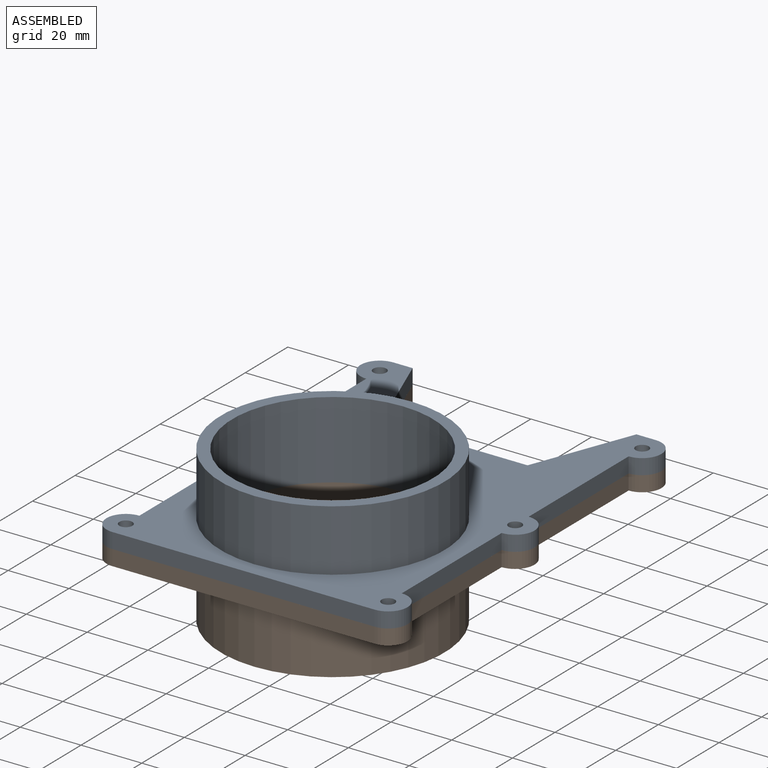
[diagram: assembled view]
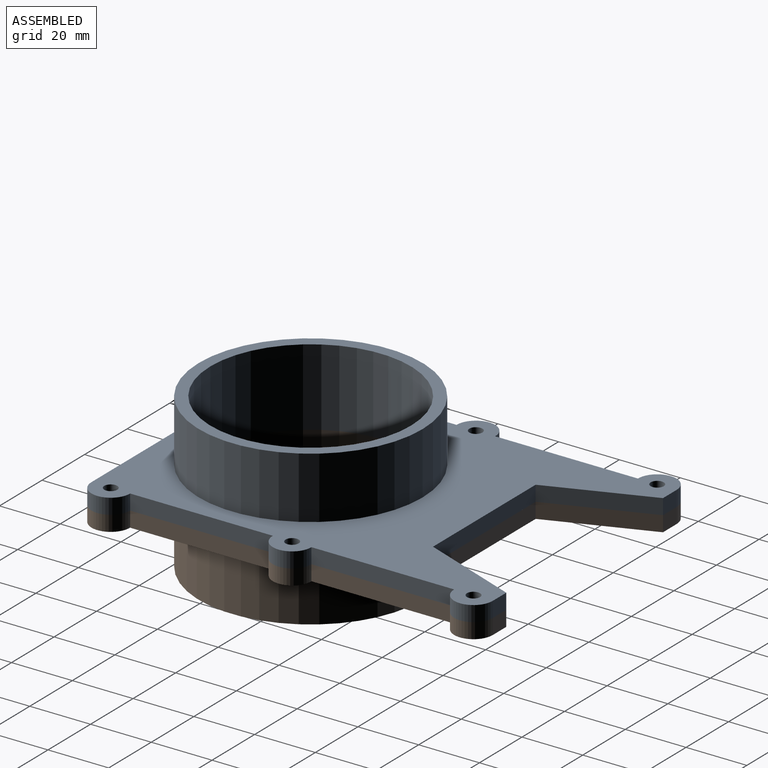
[diagram: assembled view, second angle]
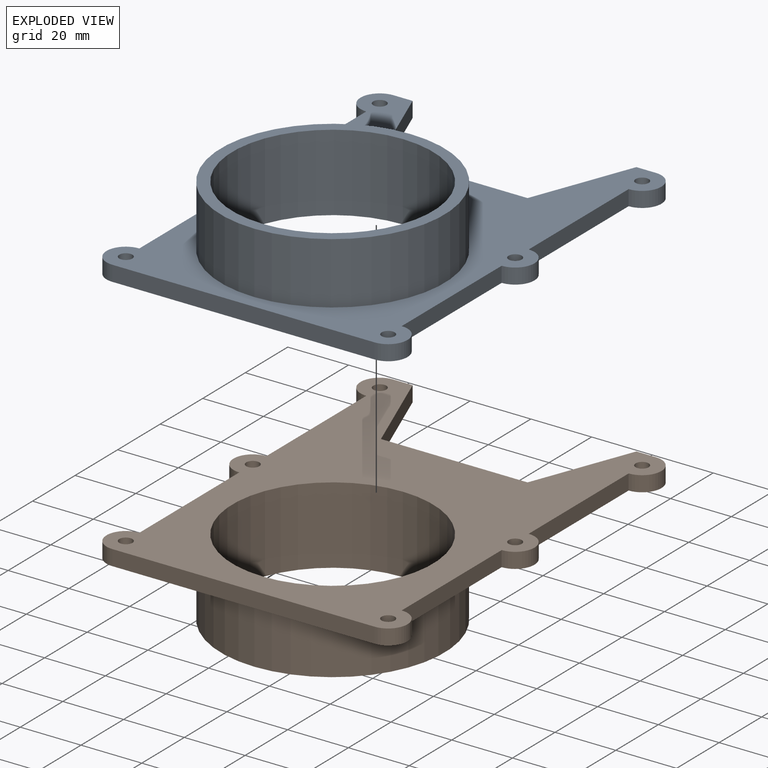
[diagram: exploded view]
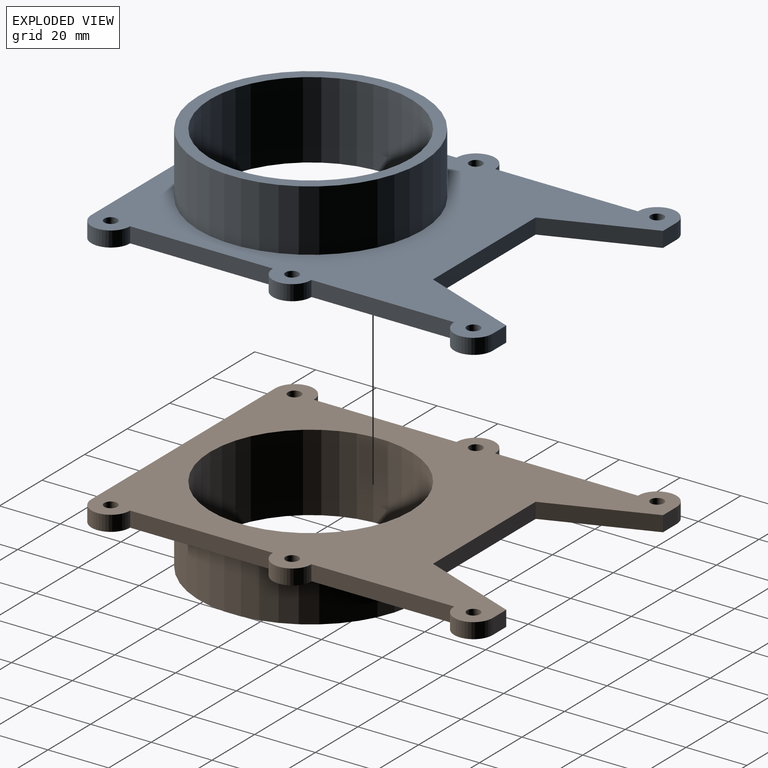
[diagram: exploded view, second angle]
ASSEMBLY  parts=2 mates=2
PART A: 27 faces, bbox 99.1x132.1x25.4 mm
  f0: plane 73.66x73.66mm, normal (0,0,1), area 836.1mm2, adj f1,f2
  f1: cylinder r=36.83mm len=73.66mm, axis (0,0,-1), area 4702.2mm2, adj f0,f4
  f2: cylinder r=33.02mm len=66.04mm, axis (0,0,-1), area 5269.8mm2, adj f0,f3
  f3: plane 132.08x99.06mm, normal (0,0,-1), area 6260.4mm2, adj f2,f5,f6,f7,f8,f9,f10,f11
  f4: plane 132.08x99.06mm, normal (0,0,1), area 5424.3mm2, adj f1,f5,f6,f7,f8,f9,f10,f11
  f5: cylinder r=6.35mm len=12.7mm, axis (0,0,1), area 101.3mm2, adj f3,f4,f6,f13
  f6: plane 86.36x5.08mm, normal (0,-1,0), area 438.7mm2, adj f3,f4,f5,f17
  f7: plane 48.26x5.08mm, normal (0,1,0), area 245.2mm2, adj f3,f4,f8,f23
  f8: plane 33.02x12.7mm, normal (-0.93,0.36,0), area 179.7mm2, adj f3,f4,f7,f9
  f9: plane 6.35x5.08mm, normal (0,1,0), area 32.3mm2, adj f3,f4,f8,f10
  f10: cylinder r=6.35mm len=12.7mm, axis (0,0,1), area 101.3mm2, adj f3,f4,f9,f11
  f11: plane 46.99x5.08mm, normal (1,0,0), area 238.7mm2, adj f3,f4,f10,f12
  f12: cylinder r=6.35mm len=12.7mm, axis (0,0,1), area 101.3mm2, adj f3,f4,f11,f13
  f13: plane 46.99x5.08mm, normal (1,0,0), area 238.7mm2, adj f3,f4,f5,f12
  f14: cylinder r=2.16mm len=5.08mm, axis (0,0,1), area 68.9mm2, adj f3,f4
  f15: cylinder r=2.16mm len=5.08mm, axis (0,0,1), area 68.9mm2, adj f3,f4
  f16: cylinder r=2.16mm len=5.08mm, axis (0,0,1), area 68.9mm2, adj f3,f4
  f17: cylinder r=6.35mm len=12.7mm, axis (0,0,1), area 101.3mm2, adj f3,f4,f6,f18
  f18: plane 46.99x5.08mm, normal (-1,0,0), area 238.7mm2, adj f3,f4,f17,f19
  f19: cylinder r=6.35mm len=12.7mm, axis (0,0,1), area 101.3mm2, adj f3,f4,f18,f20
  f20: plane 46.99x5.08mm, normal (-1,0,0), area 238.7mm2, adj f3,f4,f19,f21
  f21: cylinder r=6.35mm len=12.7mm, axis (0,0,1), area 101.3mm2, adj f3,f4,f20,f22
  f22: plane 6.35x5.08mm, normal (0,1,0), area 32.3mm2, adj f3,f4,f21,f23
  f23: plane 33.02x12.7mm, normal (0.93,0.36,0), area 179.7mm2, adj f3,f4,f7,f22
  f24: cylinder r=2.16mm len=5.08mm, axis (0,0,1), area 68.9mm2, adj f3,f4
  f25: cylinder r=2.16mm len=5.08mm, axis (0,0,1), area 68.9mm2, adj f3,f4
  f26: cylinder r=2.16mm len=5.08mm, axis (0,0,1), area 68.9mm2, adj f3,f4
PART B: 27 faces, bbox 99.1x132.1x25.4 mm
  f0: plane 73.66x73.66mm, normal (0,0,-1), area 836.1mm2, adj f1,f2
  f1: cylinder r=36.83mm len=73.66mm, axis (0,0,1), area 4702.2mm2, adj f0,f4
  f2: cylinder r=33.02mm len=66.04mm, axis (0,0,1), area 5269.8mm2, adj f0,f3
  f3: plane 132.08x99.06mm, normal (0,0,1), area 6260.4mm2, adj f2,f5,f6,f7,f8,f9,f10,f11
  f4: plane 132.08x99.06mm, normal (0,0,-1), area 5424.3mm2, adj f1,f5,f6,f7,f8,f9,f10,f11
  f5: cylinder r=6.35mm len=12.7mm, axis (0,0,-1), area 101.3mm2, adj f3,f4,f6,f13
  f6: plane 86.36x5.08mm, normal (0,-1,0), area 438.7mm2, adj f3,f4,f5,f17
  f7: plane 48.26x5.08mm, normal (0,1,0), area 245.2mm2, adj f3,f4,f8,f23
  f8: plane 33.02x12.7mm, normal (-0.93,0.36,0), area 179.7mm2, adj f3,f4,f7,f9
  f9: plane 6.35x5.08mm, normal (0,1,0), area 32.3mm2, adj f3,f4,f8,f10
  f10: cylinder r=6.35mm len=12.7mm, axis (0,0,-1), area 101.3mm2, adj f3,f4,f9,f11
  f11: plane 46.99x5.08mm, normal (1,0,0), area 238.7mm2, adj f3,f4,f10,f12
  f12: cylinder r=6.35mm len=12.7mm, axis (0,0,-1), area 101.3mm2, adj f3,f4,f11,f13
  f13: plane 46.99x5.08mm, normal (1,0,0), area 238.7mm2, adj f3,f4,f5,f12
  f14: cylinder r=2.16mm len=5.08mm, axis (0,0,-1), area 68.9mm2, adj f3,f4
  f15: cylinder r=2.16mm len=5.08mm, axis (0,0,-1), area 68.9mm2, adj f3,f4
  f16: cylinder r=2.16mm len=5.08mm, axis (0,0,-1), area 68.9mm2, adj f3,f4
  f17: cylinder r=6.35mm len=12.7mm, axis (0,0,-1), area 101.3mm2, adj f3,f4,f6,f18
  f18: plane 46.99x5.08mm, normal (-1,0,0), area 238.7mm2, adj f3,f4,f17,f19
  f19: cylinder r=6.35mm len=12.7mm, axis (0,0,-1), area 101.3mm2, adj f3,f4,f18,f20
  f20: plane 46.99x5.08mm, normal (-1,0,0), area 238.7mm2, adj f3,f4,f19,f21
  f21: cylinder r=6.35mm len=12.7mm, axis (0,0,-1), area 101.3mm2, adj f3,f4,f20,f22
  f22: plane 6.35x5.08mm, normal (0,1,0), area 32.3mm2, adj f3,f4,f21,f23
  f23: plane 33.02x12.7mm, normal (0.93,0.36,0), area 179.7mm2, adj f3,f4,f7,f22
  f24: cylinder r=2.16mm len=5.08mm, axis (0,0,-1), area 68.9mm2, adj f3,f4
  f25: cylinder r=2.16mm len=5.08mm, axis (0,0,-1), area 68.9mm2, adj f3,f4
  f26: cylinder r=2.16mm len=5.08mm, axis (0,0,-1), area 68.9mm2, adj f3,f4
PLACE A t=(-76.58,-55.15,34.19)mm
PLACE B t=(-76.58,-55.15,36.73)mm
MATE cylindrical B.f12 <-> A.f12  axis (0,0,1) through (-33.4,-31.02,29.11)mm
MATE planar B.f3 <-> A.f3  axis (0,0,1) through (-76.58,-34.11,29.11)mm
